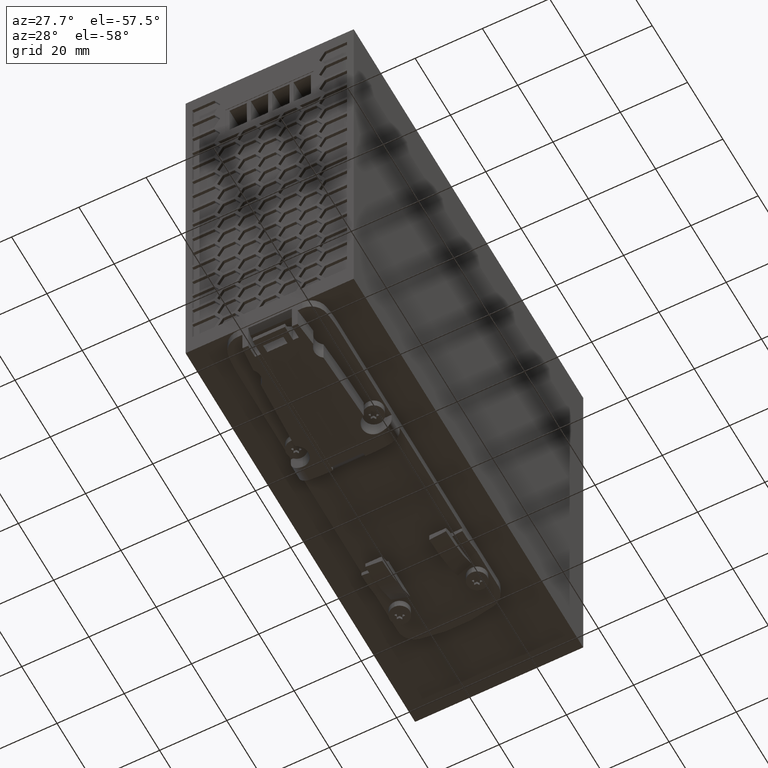
[diagram: clean part render]
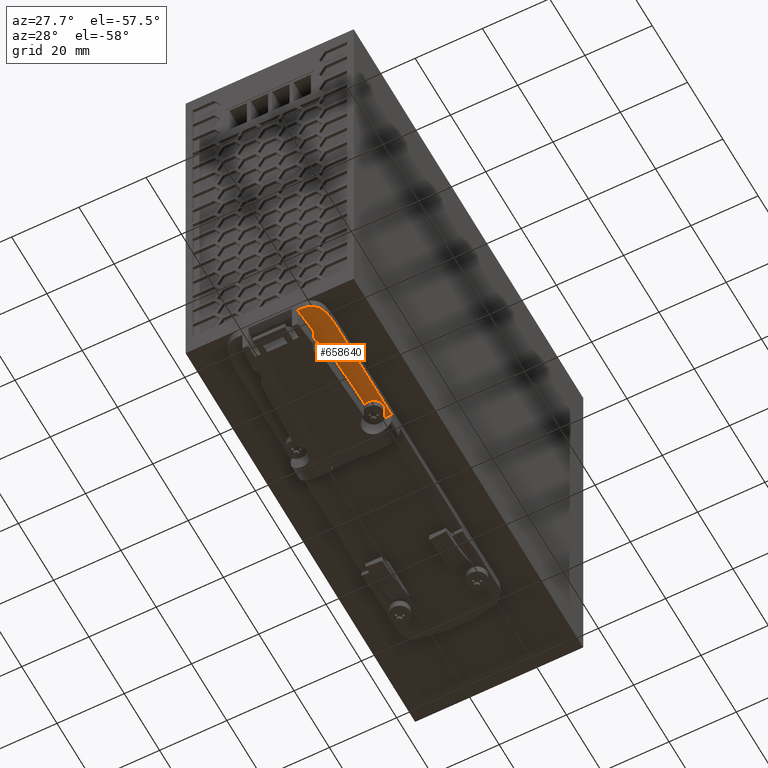
[diagram: same view with one face highlighted and labeled with its STEP entity id]
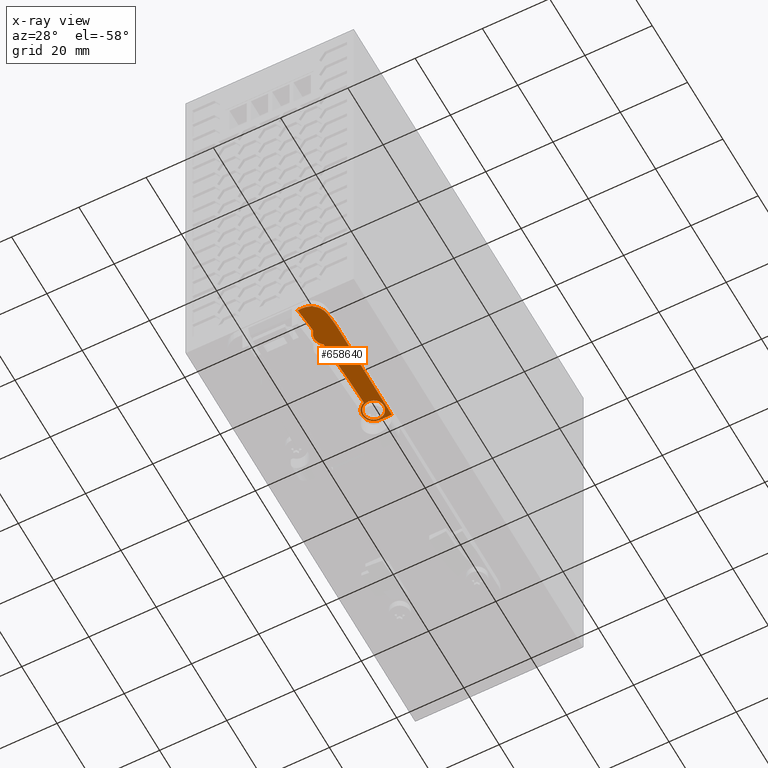
[diagram: x-ray of the same camera — body ghosted, the highlighted face saturated]
A machine part, auxiliary view. The second image highlights one B-rep face of the part: STEP entity #658640.
The next image is the same camera in x-ray: the body ghosted, the highlighted face saturated — about 0% of this face is hidden behind the body in this view.
In plain terms, the highlighted planar face has unit normal (0, 0, -1).
Its self-contained STEP definition (entity closure, byte-faithful):
#656950=CARTESIAN_POINT('',(40.,-2.89999999999985,88.6523651948));
#656960=VERTEX_POINT('',#656950);
#656990=CARTESIAN_POINT('',(40.,-2.89999999999985,64.2));
#657000=DIRECTION('',(0.,0.,1.));
#657010=VECTOR('',#657000,1.);
#657020=LINE('',#656990,#657010);
#657030=CARTESIAN_POINT('',(40.,-2.89999999999985,119.0023651948));
#657040=VERTEX_POINT('',#657030);
#657050=EDGE_CURVE('',#656960,#657040,#657020,.T.);
#657320=CARTESIAN_POINT('',(0.,-2.89999999999985,119.0023651948));
#657330=DIRECTION('',(0.,-1.,0.));
#657340=DIRECTION('',(1.,0.,0.));
#657350=AXIS2_PLACEMENT_3D('',#657320,#657330,#657340);
#657360=CIRCLE('',#657350,40.);
#657370=CARTESIAN_POINT('',(39.5897327444315,-2.89999999999985,
124.716650909086));
#657380=VERTEX_POINT('',#657370);
#657390=EDGE_CURVE('',#657040,#657380,#657360,.T.);
#657620=CARTESIAN_POINT('',(34.6410161513775,-2.89999999999985,
124.0023651948));
#657630=DIRECTION('',(0.,-1.,0.));
#657640=DIRECTION('',(0.,0.,1.));
#657650=AXIS2_PLACEMENT_3D('',#657620,#657630,#657640);
#657660=CIRCLE('',#657650,5.);
#657670=CARTESIAN_POINT('',(34.6410161513775,-2.89999999999985,
129.0023651948));
#657680=VERTEX_POINT('',#657670);
#657690=EDGE_CURVE('',#657380,#657680,#657660,.T.);
#657890=CARTESIAN_POINT('',(25.,-2.89999999999985,66.4023651948));
#657900=DIRECTION('',(0.,-1.,0.));
#657910=DIRECTION('',(0.,0.,1.));
#657920=AXIS2_PLACEMENT_3D('',#657890,#657900,#657910);
#657930=PLANE('',#657920);
#657940=CARTESIAN_POINT('',(36.5,-2.89999999999985,92.1523651948));
#657950=DIRECTION('',(0.,-1.,0.));
#657960=DIRECTION('',(1.,0.,0.));
#657970=AXIS2_PLACEMENT_3D('',#657940,#657950,#657960);
#657980=CIRCLE('',#657970,3.5);
#657990=CARTESIAN_POINT('',(35.2342996994727,-2.89999999999985,
95.4154929503813));
#658000=VERTEX_POINT('',#657990);
#658010=CARTESIAN_POINT('',(36.4997373463353,-2.89999999999985,
88.6523651948));
#658020=VERTEX_POINT('',#658010);
#658030=EDGE_CURVE('',#658000,#658020,#657980,.T.);
#658040=ORIENTED_EDGE('',*,*,#658030,.T.);
#658050=CARTESIAN_POINT('',(-366.2,-2.89999999999985,88.1523651948));
#658060=DIRECTION('',(0.,-1.,0.));
#658070=DIRECTION('',(0.,0.,-1.));
#658080=AXIS2_PLACEMENT_3D('',#658050,#658060,#658070);
#658090=CIRCLE('',#658080,401.5);
#658100=CARTESIAN_POINT('',(34.303127226962,-2.89999999999985,
116.427709249717));
#658110=VERTEX_POINT('',#658100);
#658120=EDGE_CURVE('',#658000,#658110,#658090,.T.);
#658130=ORIENTED_EDGE('',*,*,#658120,.F.);
#658140=CARTESIAN_POINT('',(36.5,-2.89999999999985,119.1523651948));
#658150=DIRECTION('',(0.,-1.,0.));
#658160=DIRECTION('',(1.,0.,0.));
#658170=AXIS2_PLACEMENT_3D('',#658140,#658150,#658160);
#658180=CIRCLE('',#658170,3.5);
#658190=CARTESIAN_POINT('',(33.9119922167592,-2.89999999999985,
121.508679204835));
#658200=VERTEX_POINT('',#658190);
#658210=EDGE_CURVE('',#658200,#658110,#658180,.T.);
#658220=ORIENTED_EDGE('',*,*,#658210,.T.);
#658230=CARTESIAN_POINT('',(-366.2,-2.89999999999985,88.1523651948));
#658240=DIRECTION('',(0.,-1.,0.));
#658250=DIRECTION('',(0.,0.,-1.));
#658260=AXIS2_PLACEMENT_3D('',#658230,#658240,#658250);
#658270=CIRCLE('',#658260,401.5);
#658280=CARTESIAN_POINT('',(33.2164837609985,-2.89999999999985,
129.0023651948));
#658290=VERTEX_POINT('',#658280);
#658300=EDGE_CURVE('',#658200,#658290,#658270,.T.);
#658310=ORIENTED_EDGE('',*,*,#658300,.F.);
#658320=CARTESIAN_POINT('',(50.,-2.89999999999985,129.0023651948));
#658330=DIRECTION('',(1.,0.,0.));
#658340=VECTOR('',#658330,1.);
#658350=LINE('',#658320,#658340);
#658360=EDGE_CURVE('',#658290,#657680,#658350,.T.);
#658370=ORIENTED_EDGE('',*,*,#658360,.F.);
#658380=ORIENTED_EDGE('',*,*,#657690,.T.);
#658390=ORIENTED_EDGE('',*,*,#657390,.T.);
#658400=ORIENTED_EDGE('',*,*,#657050,.T.);
#658410=CARTESIAN_POINT('',(50.,-2.89999999999985,88.6523651948));
#658420=DIRECTION('',(-1.,0.,0.));
#658430=VECTOR('',#658420,1.);
#658440=LINE('',#658410,#658430);
#658450=EDGE_CURVE('',#656960,#658020,#658440,.T.);
#658460=ORIENTED_EDGE('',*,*,#658450,.F.);
#658470=EDGE_LOOP('',(#658460,#658400,#658390,#658380,#658370,#658310,
#658220,#658130,#658040));
#658480=FACE_OUTER_BOUND('',#658470,.T.);
#658490=CARTESIAN_POINT('',(36.5,-2.89999999999985,92.1523651948));
#658500=DIRECTION('',(0.,-1.,0.));
#658510=DIRECTION('',(0.,0.,1.));
#658520=AXIS2_PLACEMENT_3D('',#658490,#658500,#658510);
#658530=CIRCLE('',#658520,3.);
#658540=CARTESIAN_POINT('',(36.5,-2.89999999999985,95.1523651948));
#658550=VERTEX_POINT('',#658540);
#658560=CARTESIAN_POINT('',(36.5,-2.89999999999985,89.1523651948));
#658570=VERTEX_POINT('',#658560);
#658580=EDGE_CURVE('',#658550,#658570,#658530,.T.);
#658590=ORIENTED_EDGE('',*,*,#658580,.F.);
#658600=EDGE_CURVE('',#658570,#658550,#658530,.T.);
#658610=ORIENTED_EDGE('',*,*,#658600,.F.);
#658620=EDGE_LOOP('',(#658610,#658590));
#658630=FACE_BOUND('',#658620,.T.);
#658640=ADVANCED_FACE('',(#658480,#658630),#657930,.T.);